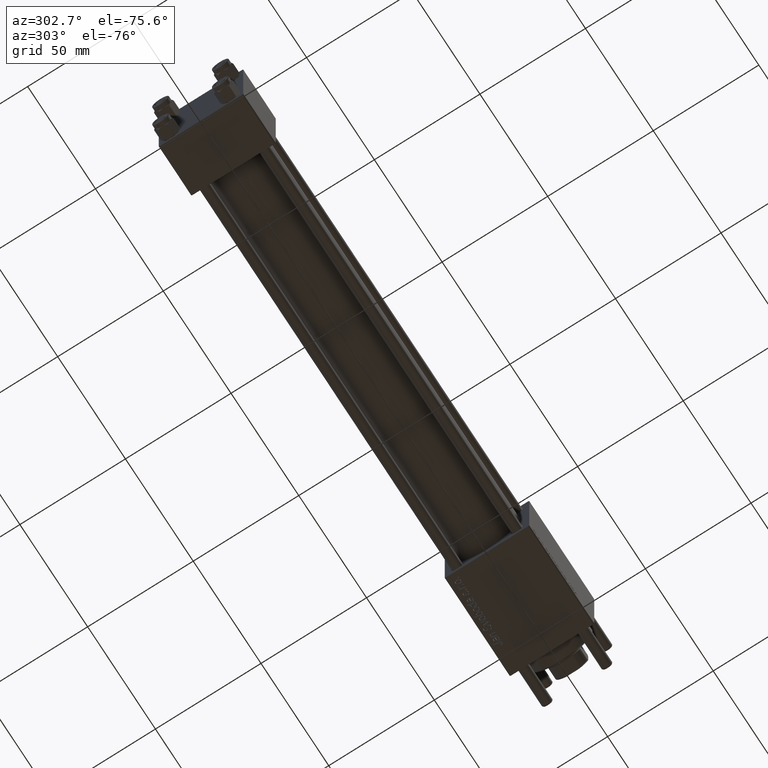
[diagram: clean part render]
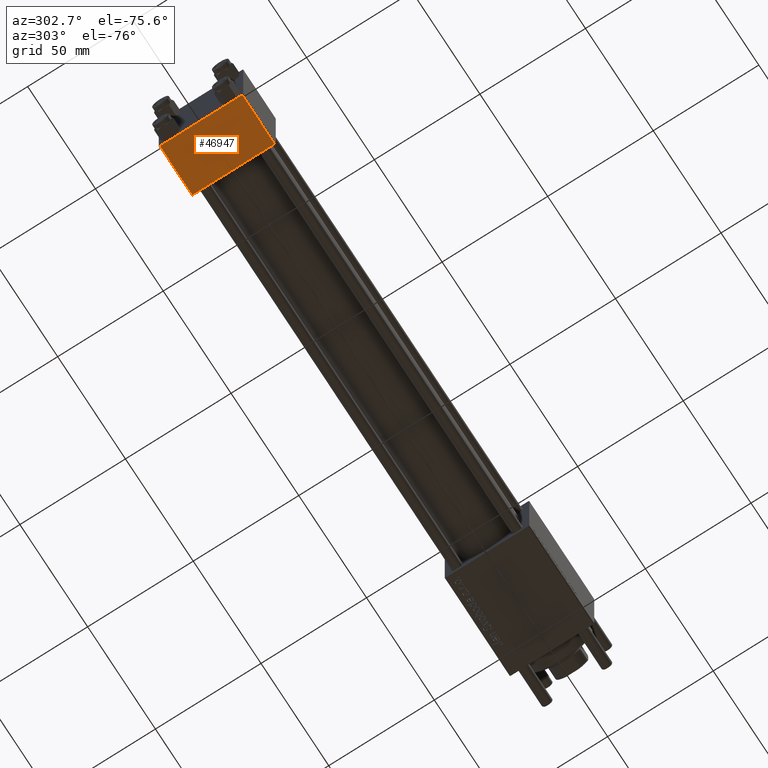
[diagram: same view with one face highlighted and labeled with its STEP entity id]
A machine part, auxiliary view. The second image highlights one B-rep face of the part: STEP entity #46947.
In plain terms, the highlighted planar face has unit normal (0, -0, -1).
Its self-contained STEP definition (entity closure, byte-faithful):
#61 = EDGE_CURVE ( 'NONE', #42458, #15858, #6947, .T. ) ;
#2473 = DIRECTION ( 'NONE',  ( 0.000000000000000000, -1.734723475976806848E-16, -1.000000000000000000 ) ) ;
#3304 = VECTOR ( 'NONE', #5736, 1000.000000000000000 ) ;
#4345 = LINE ( 'NONE', #14074, #53426 ) ;
#5214 = CARTESIAN_POINT ( 'NONE',  ( 24.00000000000000000, 20.00000000000000000, -20.00000000000000711 ) ) ;
#5736 = DIRECTION ( 'NONE',  ( 1.000000000000000000, 0.000000000000000000, 0.000000000000000000 ) ) ;
#6947 = LINE ( 'NONE', #11254, #12468 ) ;
#7340 = DIRECTION ( 'NONE',  ( 0.000000000000000000, 1.000000000000000000, -1.734723475976806848E-16 ) ) ;
#8927 = DIRECTION ( 'NONE',  ( 0.000000000000000000, -1.000000000000000000, 1.734723475976807094E-16 ) ) ;
#11254 = CARTESIAN_POINT ( 'NONE',  ( 0.000000000000000000, -19.50000000000000711, -20.00000000000000000 ) ) ;
#12273 = VERTEX_POINT ( 'NONE', #35113 ) ;
#12468 = VECTOR ( 'NONE', #24738, 1000.000000000000000 ) ;
#14074 = CARTESIAN_POINT ( 'NONE',  ( 0.000000000000000000, 20.00000000000000000, -20.00000000000000711 ) ) ;
#14668 = CARTESIAN_POINT ( 'NONE',  ( 0.000000000000000000, 19.50000000000000711, -20.00000000000000711 ) ) ;
#15858 = VERTEX_POINT ( 'NONE', #36580 ) ;
#20970 = VERTEX_POINT ( 'NONE', #14668 ) ;
#21861 = EDGE_CURVE ( 'NONE', #12273, #42458, #39655, .T. ) ;
#24738 = DIRECTION ( 'NONE',  ( -1.000000000000000000, 0.000000000000000000, 0.000000000000000000 ) ) ;
#29113 = FACE_OUTER_BOUND ( 'NONE', #53727, .T. ) ;
#30320 = VECTOR ( 'NONE', #49096, 1000.000000000000000 ) ;
#33489 = ORIENTED_EDGE ( 'NONE', *, *, #37508, .F. ) ;
#35113 = CARTESIAN_POINT ( 'NONE',  ( 24.00000000000000000, 19.50000000000000711, -20.00000000000000711 ) ) ;
#35206 = AXIS2_PLACEMENT_3D ( 'NONE', #42333, #2473, #7340 ) ;
#35747 = CARTESIAN_POINT ( 'NONE',  ( 24.00000000000000000, -19.50000000000000711, -20.00000000000000000 ) ) ;
#36580 = CARTESIAN_POINT ( 'NONE',  ( 0.000000000000000000, -19.50000000000000711, -20.00000000000000000 ) ) ;
#37508 = EDGE_CURVE ( 'NONE', #20970, #15858, #4345, .T. ) ;
#38572 = ORIENTED_EDGE ( 'NONE', *, *, #51342, .T. ) ;
#39655 = LINE ( 'NONE', #5214, #30320 ) ;
#42333 = CARTESIAN_POINT ( 'NONE',  ( 24.00000000000000000, 20.00000000000000000, -20.00000000000000711 ) ) ;
#42458 = VERTEX_POINT ( 'NONE', #35747 ) ;
#44184 = LINE ( 'NONE', #53061, #3304 ) ;
#46947 = ADVANCED_FACE ( 'NONE', ( #29113 ), #47479, .T. ) ;
#47479 = PLANE ( 'NONE',  #35206 ) ;
#49096 = DIRECTION ( 'NONE',  ( 0.000000000000000000, -1.000000000000000000, 1.734723475976807094E-16 ) ) ;
#49566 = ORIENTED_EDGE ( 'NONE', *, *, #21861, .T. ) ;
#51342 = EDGE_CURVE ( 'NONE', #20970, #12273, #44184, .T. ) ;
#53061 = CARTESIAN_POINT ( 'NONE',  ( 24.00000000000000000, 19.50000000000000711, -20.00000000000000711 ) ) ;
#53426 = VECTOR ( 'NONE', #8927, 1000.000000000000000 ) ;
#53727 = EDGE_LOOP ( 'NONE', ( #33489, #38572, #49566, #53861 ) ) ;
#53861 = ORIENTED_EDGE ( 'NONE', *, *, #61, .T. ) ;